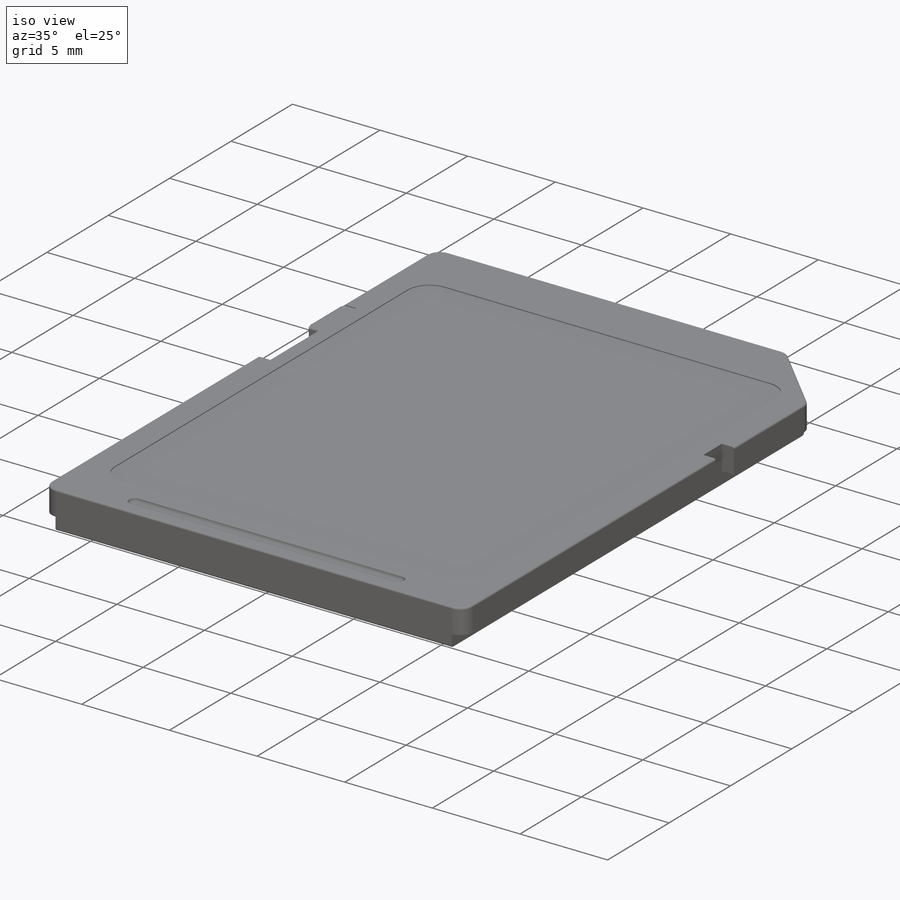
[diagram: iso view]
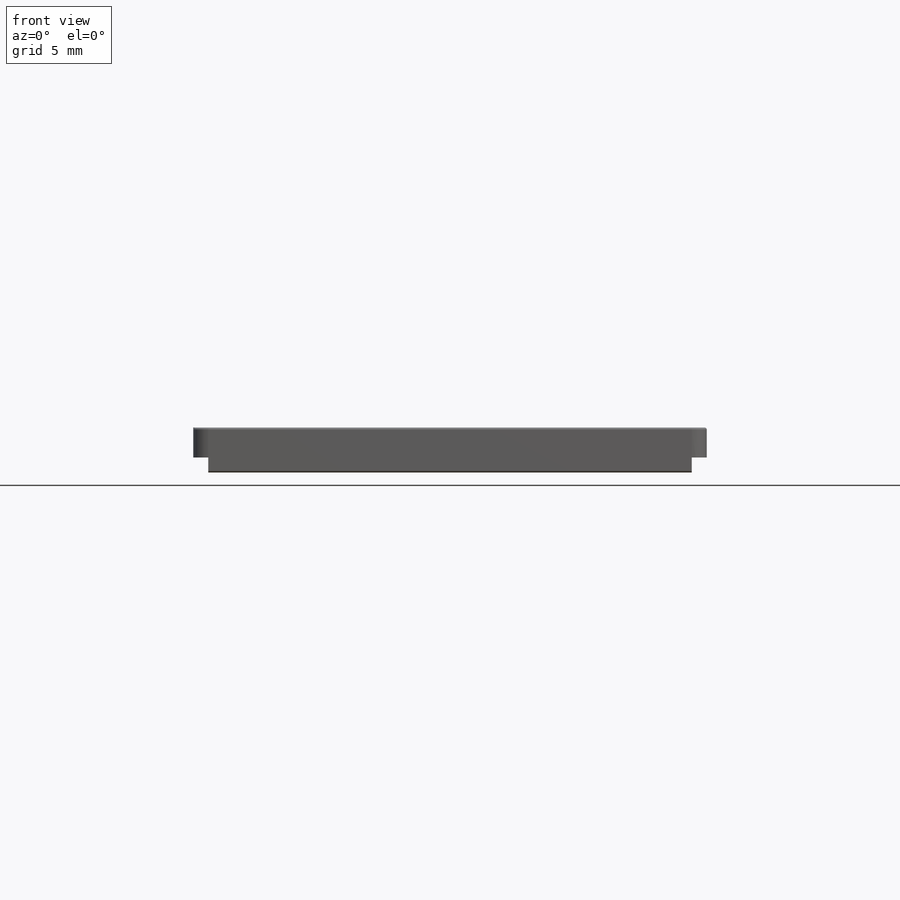
[diagram: front view]
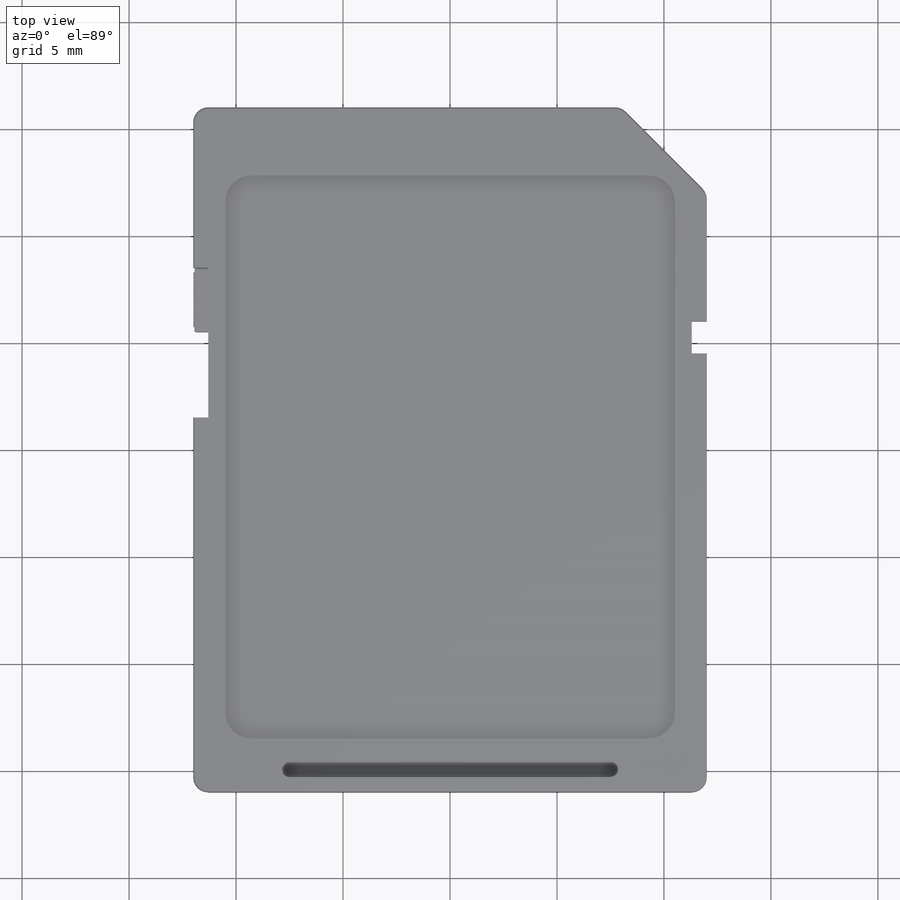
[diagram: top view]
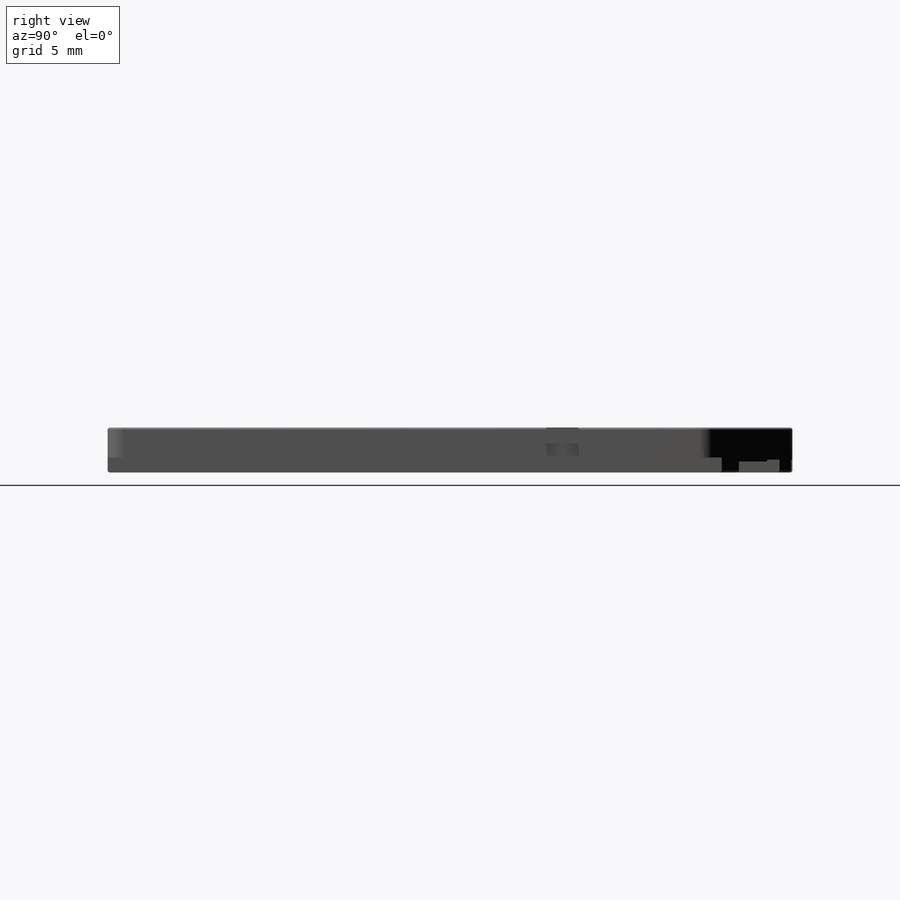
[diagram: right view]
SOLIDWORKS PART (.sldprt)
format: sldprt  version: not decoded by parser v0  size: 695,296 bytes
history: native  units: mm
features: sketch x14, cut_extrude x11, fillet x4, extrude x3, material x1, pattern_linear x1 (+11 scaffold rows collapsed)
feature tree (45):
  scaffold x11  (default folders/planes/origin — collapsed)
  material  "Material <not specified>"
  sketch  "Sketch1"  dims[D1=24.0mm D2=32.0mm]
  extrude  "Boss-Extrude1"  Depth=2.1mm
  sketch  "Sketch2"  dims[D1=0.7mm D2=1.5mm D3=20.5mm D4=17.5mm D5=7.0mm D6=0.7mm]
  cut_extrude  "Cut-Extrude1"  [1 undecoded]
  sketch  "Sketch3"  dims[D5=1.2mm D1=1.5mm D2=1.5mm D3=2.5mm D4=3.2mm]
  cut_extrude  "Cut-Extrude2"  Depth=0.05mm
  sketch  "Sketch4"  dims[D1=0.7mm D2=15.0mm D3=0.7mm]
  cut_extrude  "Cut-Extrude3"  Depth=0.2mm
  fillet  "Fillet1"  Radius=0.2mm
  fillet  "Fillet2"  Radius=0.1mm
  sketch  "Sketch5"  dims[D1=3.0mm D2=1.3mm]
  extrude  "Boss-Extrude2"  [1 undecoded]
  sketch  "Sketch6"
  cut_extrude  "Cut-Extrude4"  [1 undecoded]
  sketch  "Sketch7"
  cut_extrude  "Cut-Extrude5"  [1 undecoded]
  pattern_linear  "LPattern1"  Count1=49 Count2=1 Spacing1=0.05mm Spacing2=10mm
  sketch  "Sketch8"
  cut_extrude  "Cut-Extrude6"  [1 undecoded]
  fillet  "Fillet3"  Radius=0.1mm
  sketch  "Sketch9"
  cut_extrude  "Cut-Extrude7"  Depth=1mm
  fillet  "Fillet4"  Radius=0.7mm
  sketch  "Sketch10"  dims[D1=1.4mm D2=1.4mm D3=0.7mm D4=0.7mm]
  cut_extrude  "Cut-Extrude8"  [1 undecoded]
  sketch  "Sketch11"  dims[D1=0.7mm D2=3.6mm D3=0.6mm D4=0.6mm D5=0.6mm D6=0.6mm D7=0.6mm D8=0.6mm D9=1.9mm D10=1.9mm D11=1.9mm D12=1.9mm D13=1.9mm D14=1.9mm D15=0.6mm D16=1.9mm D17=24.0mm D18=25.9mm]
  cut_extrude  "Cut-Extrude9"  Depth=0.6mm
  sketch  "Sketch12"  dims[D1=1.3mm D2=1.3mm D3=1.3mm D4=0.2mm D5=0.2mm D6=1.3mm D7=1.3mm]
  extrude  "Boss-Extrude3"  Depth=0.1mm
  sketch  "Sketch13"  dims[D1=0.7mm D2=1.2mm D3=0.3mm]
  cut_extrude  "Cut-Extrude10"  Depth=0.01mm
  sketch  "Sketch14"
  cut_extrude  "Cut-Extrude11"  Depth=0.01mm
decode coverage: 22 of 33 modeling features carry decoded parameters
note: 6 parameter values undecoded
summary: no parameter record found for 6 features
note: suppression state not decoded; provenance and decode notes live in map.json
